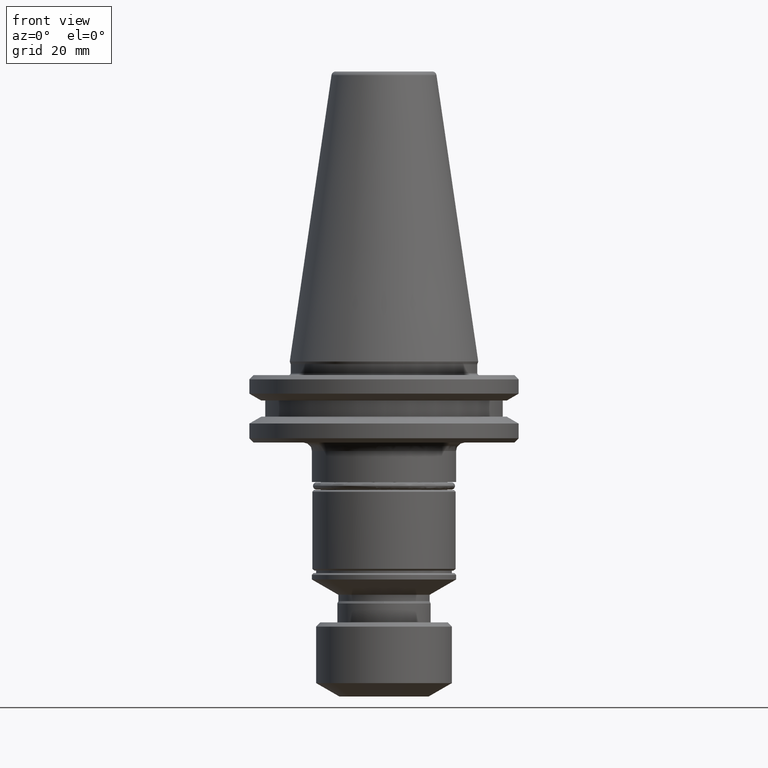
[diagram: clean part render]
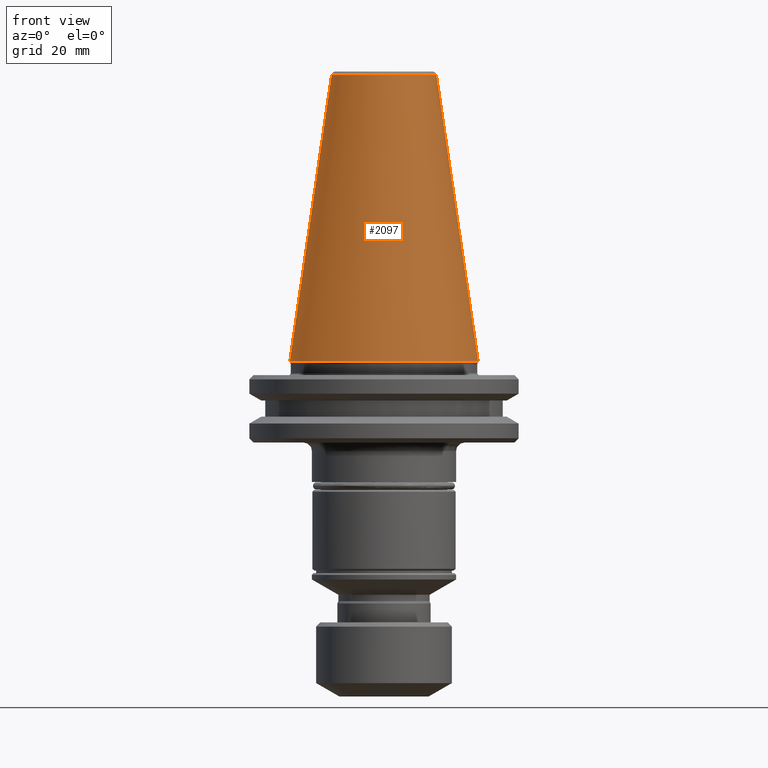
[diagram: same view with one face highlighted and labeled with its STEP entity id]
A machine part, front view. The second image highlights one B-rep face of the part: STEP entity #2097.
In plain terms, the highlighted conical surface has half-angle 8.297 deg.
Its self-contained STEP definition (entity closure, byte-faithful):
#38 = EDGE_CURVE ( 'NONE', #85, #1637, #976, .T. ) ;
#85 = VERTEX_POINT ( 'NONE', #1595 ) ;
#114 = AXIS2_PLACEMENT_3D ( 'NONE', #1167, #1164, #1161 ) ;
#276 = EDGE_CURVE ( 'NONE', #284, #1089, #1468, .T. ) ;
#280 = ORIENTED_EDGE ( 'NONE', *, *, #420, .T. ) ;
#281 = AXIS2_PLACEMENT_3D ( 'NONE', #1511, #1294, #1852 ) ;
#284 = VERTEX_POINT ( 'NONE', #1339 ) ;
#323 = ORIENTED_EDGE ( 'NONE', *, *, #1483, .F. ) ;
#346 = DIRECTION ( 'NONE',  ( 1.000000000000000000, 0.0000000000000000000, 0.0000000000000000000 ) ) ;
#420 = EDGE_CURVE ( 'NONE', #1089, #1637, #437, .T. ) ;
#437 = CIRCLE ( 'NONE', #114, 22.22499999999972400 ) ;
#463 = CARTESIAN_POINT ( 'NONE',  ( -22.22499999999972400, 2.721777511104958900E-015, 0.0000000000000000000 ) ) ;
#575 = VECTOR ( 'NONE', #1344, 1000.000000000000100 ) ;
#588 = CIRCLE ( 'NONE', #1806, 12.37469540292147000 ) ;
#722 = CARTESIAN_POINT ( 'NONE',  ( 0.0000000000000000000, 0.0000000000000000000, 67.54430822688355800 ) ) ;
#852 = EDGE_LOOP ( 'NONE', ( #1008, #323, #1786, #280 ) ) ;
#976 = LINE ( 'NONE', #1837, #1397 ) ;
#1008 = ORIENTED_EDGE ( 'NONE', *, *, #38, .F. ) ;
#1078 = FACE_OUTER_BOUND ( 'NONE', #852, .T. ) ;
#1089 = VERTEX_POINT ( 'NONE', #463 ) ;
#1161 = DIRECTION ( 'NONE',  ( 1.000000000000000000, 0.0000000000000000000, 0.0000000000000000000 ) ) ;
#1164 = DIRECTION ( 'NONE',  ( -0.0000000000000000000, -0.0000000000000000000, 1.000000000000000000 ) ) ;
#1167 = CARTESIAN_POINT ( 'NONE',  ( 0.0000000000000000000, 0.0000000000000000000, 0.0000000000000000000 ) ) ;
#1294 = DIRECTION ( 'NONE',  ( 0.0000000000000000000, 0.0000000000000000000, -1.000000000000000000 ) ) ;
#1339 = CARTESIAN_POINT ( 'NONE',  ( -12.37469540292147000, 0.0000000000000000000, 67.54430822688355800 ) ) ;
#1344 = DIRECTION ( 'NONE',  ( -0.1443082268835100800, 0.0000000000000000000, -0.9895327865481452500 ) ) ;
#1357 = CARTESIAN_POINT ( 'NONE',  ( -12.37469540292147000, 0.0000000000000000000, 67.54430822688355800 ) ) ;
#1397 = VECTOR ( 'NONE', #1792, 1000.000000000000100 ) ;
#1468 = LINE ( 'NONE', #1357, #575 ) ;
#1483 = EDGE_CURVE ( 'NONE', #284, #85, #588, .T. ) ;
#1490 = DIRECTION ( 'NONE',  ( -0.0000000000000000000, -0.0000000000000000000, 1.000000000000000000 ) ) ;
#1498 = CARTESIAN_POINT ( 'NONE',  ( 22.22499999999972400, 0.0000000000000000000, 0.0000000000000000000 ) ) ;
#1511 = CARTESIAN_POINT ( 'NONE',  ( 0.0000000000000000000, 0.0000000000000000000, 67.54430822688355800 ) ) ;
#1512 = CONICAL_SURFACE ( 'NONE', #281, 12.37469540292147000, 0.1448138461595623600 ) ;
#1595 = CARTESIAN_POINT ( 'NONE',  ( 12.37469540292147000, 2.118620311333042000E-015, 67.54430822688355800 ) ) ;
#1637 = VERTEX_POINT ( 'NONE', #1498 ) ;
#1786 = ORIENTED_EDGE ( 'NONE', *, *, #276, .T. ) ;
#1792 = DIRECTION ( 'NONE',  ( 0.1443082268835100800, 1.767266081435206200E-017, -0.9895327865481452500 ) ) ;
#1806 = AXIS2_PLACEMENT_3D ( 'NONE', #722, #1490, #346 ) ;
#1837 = CARTESIAN_POINT ( 'NONE',  ( 12.37469540292147000, 1.515463111561124600E-015, 67.54430822688355800 ) ) ;
#1852 = DIRECTION ( 'NONE',  ( -1.000000000000000000, 0.0000000000000000000, 0.0000000000000000000 ) ) ;
#2097 = ADVANCED_FACE ( 'NONE', ( #1078 ), #1512, .T. ) ;